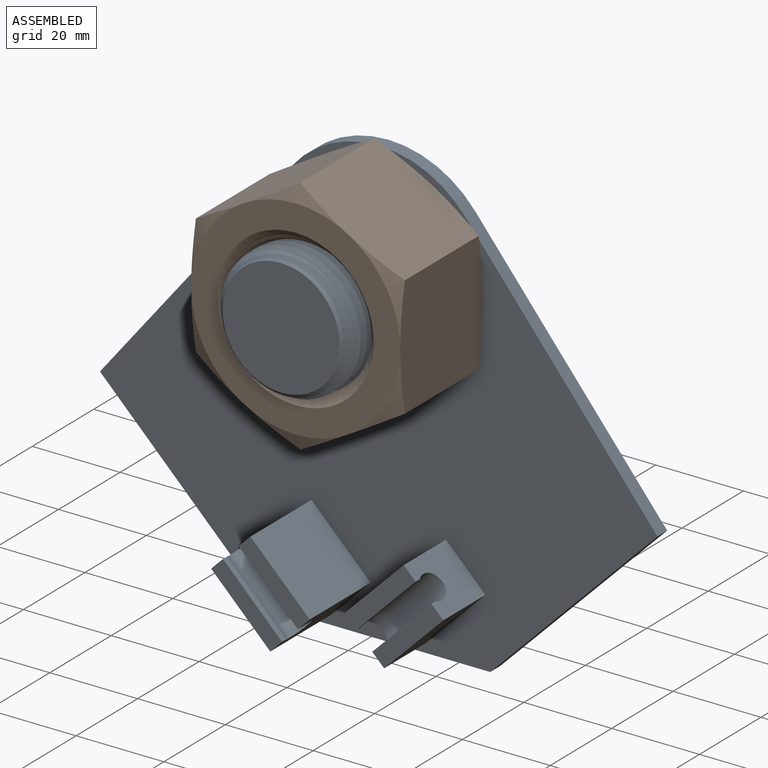
[diagram: assembled view]
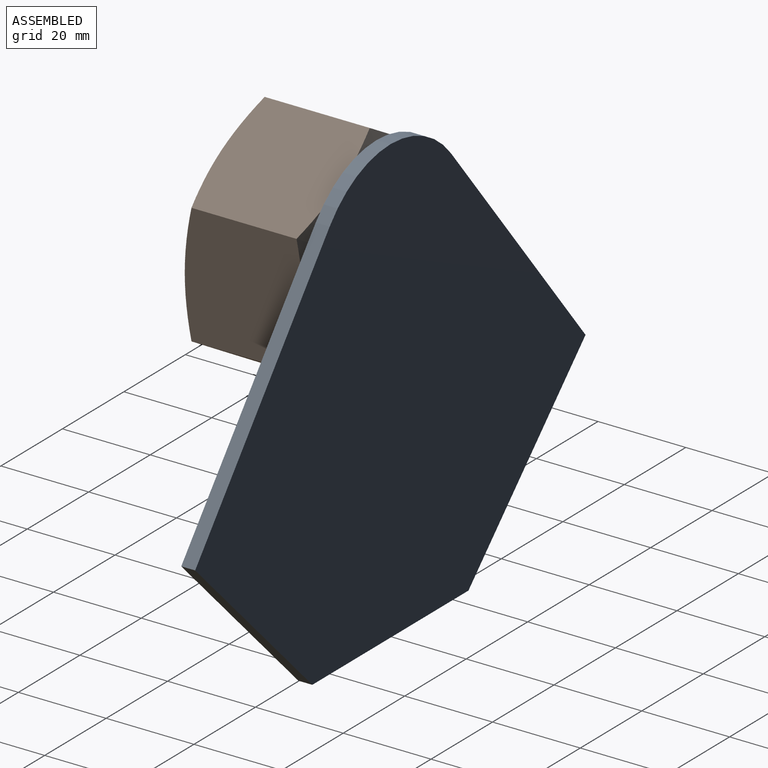
[diagram: assembled view, second angle]
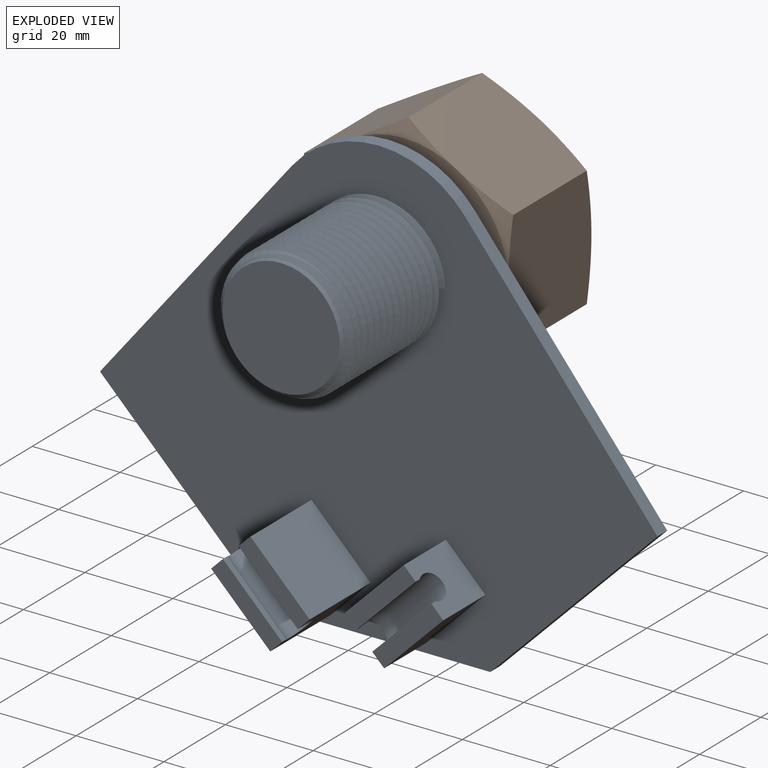
[diagram: exploded view]
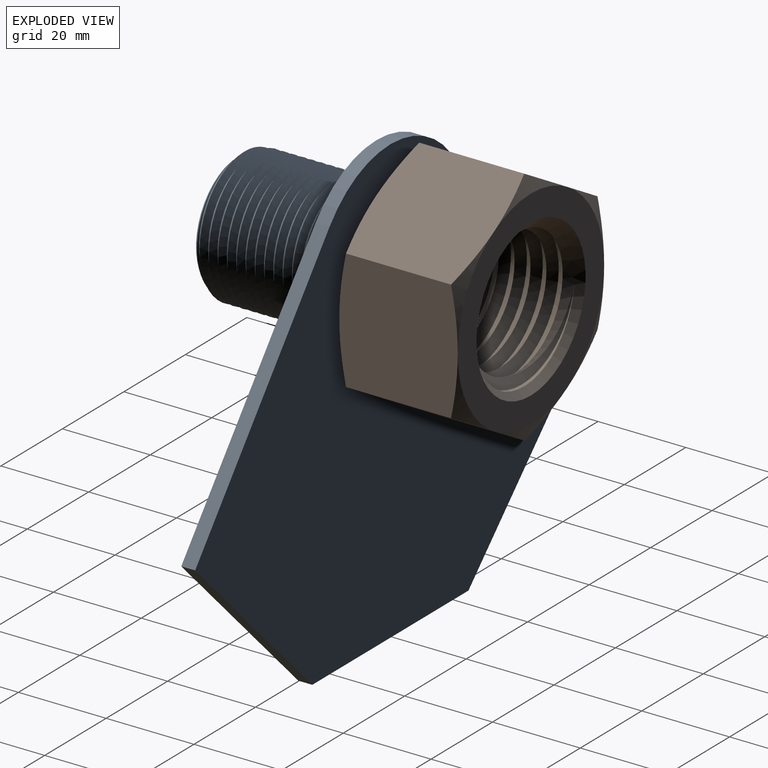
[diagram: exploded view, second angle]
ASSEMBLY  parts=2 mates=2
PART A: 33 faces, bbox 128x36.6x102.6 mm
  f0: plane 128.02x102.62mm, normal (0,-1,0), area 7049.5mm2, adj f1,f3,f4,f5,f6,f7,f8,f9
  f1: cylinder r=13.65mm len=31.43mm, axis (0,1,0), area 519.4mm2, adj f0,f2,f3,f11,f12
  f2: bspline ~35.09x31.58mm, area 2299.8mm2, adj f1,f3,f11,f12,f13
  f3: bspline ~35.09x33.34mm, area 2337.2mm2, adj f0,f1,f2,f12,f13
  f4: plane 38.1x38.1mm, normal (-0.71,0,-0.71), area 171.1mm2, adj f0,f5,f9,f10
  f5: plane 50.8x3.18mm, normal (0,0,-1), area 161.3mm2, adj f0,f4,f6,f10
  f6: plane 38.1x38.1mm, normal (0.71,0,-0.71), area 171.1mm2, adj f0,f5,f7,f10
  f7: plane 54.08x43.75mm, normal (0.78,0,0.63), area 220.9mm2, adj f0,f6,f8,f10
  f8: cylinder r=25.4mm len=39.49mm, axis (0,1,0), area 143.6mm2, adj f0,f7,f9,f10
  f9: plane 54.08x43.75mm, normal (-0.78,0,0.63), area 220.9mm2, adj f0,f4,f8,f10
  f10: plane 127x101.6mm, normal (0,1,0), area 8147.8mm2, adj f4,f5,f6,f7,f8,f9
  f11: plane 1.54x0.89mm, normal (0,0,-1), area 0.7mm2, adj f0,f1,f2
  f12: cone r=16.51mm half-angle=45deg, axis (0,1,0), area 114.3mm2, adj f1,f2,f3,f13,f14
  f13: cone r=16.51mm half-angle=45deg, axis (0,1,0), area 5.3mm2, adj f2,f3,f12
  f14: plane 26.67x26.67mm, normal (0,-1,0), area 558.6mm2, adj f12
  f15: plane 19.81x13.47mm, normal (0.71,0,0.71), area 377.4mm2, adj f0,f16,f18,f25
  f16: plane 19.81x8.98mm, normal (-0.71,0,0.71), area 220.4mm2, adj f0,f15,f17,f25,f26,f30,f31,f32
  f17: plane 19.81x13.47mm, normal (-0.71,0,-0.71), area 377.4mm2, adj f0,f16,f18,f26
  f18: plane 19.81x8.98mm, normal (0.71,0,-0.71), area 220.4mm2, adj f0,f15,f17,f25,f26,f30,f31,f32
  f19: plane 13.72x13.47mm, normal (-0.71,0,0.71), area 261.3mm2, adj f0,f20,f22,f23
  f20: plane 13.72x8.98mm, normal (-0.71,0,-0.71), area 143mm2, adj f0,f19,f21,f23,f24,f27,f28,f29
  f21: plane 13.72x13.47mm, normal (0.71,0,-0.71), area 261.3mm2, adj f0,f20,f22,f24
  f22: plane 13.72x8.98mm, normal (0.71,0,0.71), area 143mm2, adj f0,f19,f21,f23,f24,f27,f28,f29
  f23: plane 16.16x16.16mm, normal (0,-1,0), area 72.6mm2, adj f19,f20,f22,f29
  f24: plane 16.16x16.16mm, normal (0,-1,0), area 72.6mm2, adj f20,f21,f22,f28
  f25: plane 16.16x16.16mm, normal (0,-1,0), area 72.6mm2, adj f15,f16,f18,f32
  f26: plane 16.16x16.16mm, normal (0,-1,0), area 72.6mm2, adj f16,f17,f18,f31
  f27: cylinder r=3.05mm len=17.78mm, axis (-0.71,0,-0.71), area 250.4mm2, adj f20,f22,f28,f29
  f28: plane 13.47x13.47mm, normal (-0.71,0,0.71), area 26mm2, adj f20,f22,f24,f27
  f29: plane 13.47x13.47mm, normal (0.71,0,-0.71), area 26mm2, adj f20,f22,f23,f27
  f30: cylinder r=3.05mm len=17.78mm, axis (-0.71,0,0.71), area 250.4mm2, adj f16,f18,f31,f32
  f31: plane 13.47x13.47mm, normal (0.71,0,0.71), area 26mm2, adj f16,f18,f26,f30
  f32: plane 13.47x13.47mm, normal (-0.71,0,-0.71), area 26mm2, adj f16,f18,f25,f30
PART B: 26 faces, bbox 57.1x57.1x29.3 mm
  f0: bspline ~37.58x32.54mm, area 1456.4mm2, adj f1,f2,f3,f5
  f1: bspline ~37.58x32.54mm, area 1456.6mm2, adj f0,f2,f3,f4,f5
  f2: cylinder r=16.27mm len=32.54mm, axis (0,0,1), area 458.2mm2, adj f0,f1,f4,f5
  f3: cone r=12.7mm half-angle=45deg, axis (0,0,1), area 27.5mm2, adj f0,f1,f4
  f4: cone r=12.7mm half-angle=45deg, axis (0,0,1), area 307.2mm2, adj f1,f2,f3,f7
  f5: cone r=12.7mm half-angle=45deg, axis (0,0,-1), area 334.5mm2, adj f0,f1,f2,f6
  f6: plane 47.63x47.63mm, normal (0,0,-1), area 788.2mm2, adj f5,f8,f9,f12,f14,f16,f18
  f7: plane 47.63x47.63mm, normal (0,0,1), area 788.2mm2, adj f4,f10,f11,f13,f15,f17,f19
  f8: cone r=23.81mm half-angle=67.5deg, axis (0,0,1), area 52.3mm2, adj f6,f24,f25
  f9: cone r=23.81mm half-angle=67.5deg, axis (0,0,1), area 52.3mm2, adj f6,f20,f25
  f10: cone r=38.1mm half-angle=67.5deg, axis (0,0,-1), area 52.3mm2, adj f7,f20,f25
  f11: cone r=38.1mm half-angle=67.5deg, axis (0,0,-1), area 52.3mm2, adj f7,f24,f25
  f12: cone r=23.81mm half-angle=67.5deg, axis (0,0,1), area 52.3mm2, adj f6,f23,f24
  f13: cone r=38.1mm half-angle=67.5deg, axis (0,0,-1), area 52.3mm2, adj f7,f23,f24
  f14: cone r=23.81mm half-angle=67.5deg, axis (0,0,1), area 52.3mm2, adj f6,f22,f23
  f15: cone r=38.1mm half-angle=67.5deg, axis (0,0,-1), area 52.3mm2, adj f7,f22,f23
  f16: cone r=23.81mm half-angle=67.5deg, axis (0,0,1), area 52.3mm2, adj f6,f21,f22
  f17: cone r=38.1mm half-angle=67.5deg, axis (0,0,-1), area 52.3mm2, adj f7,f21,f22
  f18: cone r=23.81mm half-angle=67.5deg, axis (0,0,1), area 52.3mm2, adj f6,f20,f21
  f19: cone r=38.1mm half-angle=67.5deg, axis (0,0,-1), area 52.3mm2, adj f7,f20,f21
  f20: plane 29.12x25.94mm, normal (0.87,-0.5,0), area 713.3mm2, adj f9,f10,f18,f19,f21,f25
  f21: plane 29.12x25.94mm, normal (0.87,0.5,0), area 713.3mm2, adj f16,f17,f18,f19,f20,f22
  f22: plane 29.62x29.11mm, normal (0,1,0), area 713.3mm2, adj f14,f15,f16,f17,f21,f23
  f23: plane 29.12x25.94mm, normal (-0.87,0.5,0), area 713.3mm2, adj f12,f13,f14,f15,f22,f24
  f24: plane 29.12x25.94mm, normal (-0.87,-0.5,0), area 713.3mm2, adj f8,f11,f12,f13,f23,f25
  f25: plane 29.62x29.11mm, normal (0,-1,0), area 713.3mm2, adj f8,f9,f10,f11,f20,f24
PLACE A t=(-15.14,46.14,-76.51)mm
PLACE B rot(axis=(0.58,0.58,-0.58),120deg) t=(-15.14,42.96,-0.31)mm
MATE planar B.f6 <-> A.f0  axis (0,1,0) through (-27.05,42.96,20.32)mm
MATE cylindrical A.f1 <-> B.f2  axis (0,-1,0) through (-15.14,11.21,-0.31)mm
